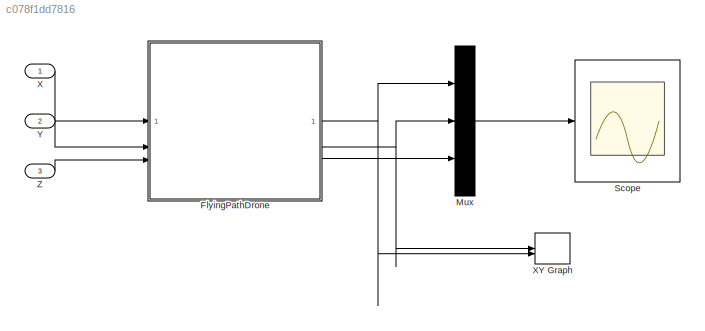
MODEL slx_c078f1dd7816
KIND model
CONFIG AbsTol = auto
CONFIG EnableMultiTasking = off
CONFIG FixedStep = auto
CONFIG MaxStep = auto
CONFIG MinStep = auto
CONFIG RelTol = 1e-3
CONFIG SampleTimeConstraint = Unconstrained
CONFIG SolverName = VariableStepAuto
CONFIG StartTime = 0.0
CONFIG StopTime = 25
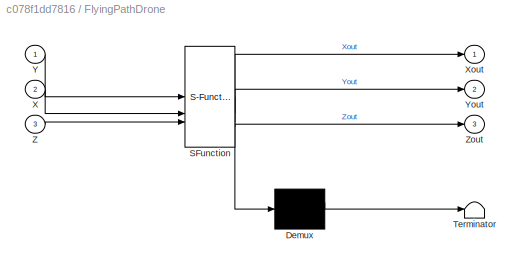
BLOCK [SubSystem] FlyingPathDrone 
  ErrorFcn = Stateflow.Translate.translate
  PermitHierarchicalResolution = ExplicitOnly
  PortSchema = {"entries":[{"content":{"sides":[{"content":{"connectorIds":["In2","In1","In3"]},"type":"ConnectorPlacement.EquallySpacedRectSide","uuid":"3a0f714e-808a-4da5-be67-da2f18581dd0"},{"content":{"connectorIds":["Out1","Out2","Out3"],"side":"RIGHT"},"type":"ConnectorPlacement.EquallySpacedRectSide","uuid":"07aeba56-ef63-4d9e-8974-53c928c3ca5a"},{"content":{"side":"TOP"},"type":"ConnectorPlacement.Equall...<+248ch>
  SFBlockType = Chart
  TreatAsAtomicUnit = on
BLOCK [Demux] FlyingPathDrone / Demux 
  Outputs = 1
BLOCK [S-Function] FlyingPathDrone / SFunction 
  EnableBusSupport = on
  FunctionName = sf_sfun
  PortCounts = [3 4]
  SFcnIsStateOwnerBlock = off
  SFunctionDeploymentMode = off
  Tag = Stateflow S-Function 3
BLOCK [Terminator] FlyingPathDrone / Terminator 
BLOCK [Inport] FlyingPathDrone /X
  Port = 2
BLOCK [Outport] FlyingPathDrone /Xout
BLOCK [Inport] FlyingPathDrone /Y
BLOCK [Outport] FlyingPathDrone /Yout
  Port = 2
BLOCK [Inport] FlyingPathDrone /Z
  Port = 3
BLOCK [Outport] FlyingPathDrone /Zout
  Port = 3
BLOCK [Mux] Mux
  DisplayOption = bar
  Inputs = 3
BLOCK [Scope] Scope
  Floating = off
  NumInputPorts = 1
  ScopeSpecificationString = Simulink.scopes.TimeScopeBlockCfg('CurrentConfiguration', extmgr.ConfigurationSet(extmgr.Configuration('Core','General UI',true),extmgr.Configuration('Core','Source UI',true),extmgr.Configuration('Sources','WiredSimulink',true),extmgr.Configuration('Visuals','Time Domain',true,'SerializedDisplays',{struct('MinYLimReal','-2.25','MaxYLimReal','20.25','YLabelReal','','MinYLimMag','0.00000','MaxYLimMa...<+1449ch>
BLOCK [Inport] X
BLOCK [Record] XY Graph
  CompatibilityTag = XY
  FileSettingsInternal = {"entries":[{"content":{"excelSettings":{"content":{},"type":"Streamout.ExcelSettings"}},"type":"Streamout.FileSettingStorage","uuid":""}],"packageUris":["http:\/\/schema.mathworks.com\/mf0\/streamout_blocks\/R2020a"],"version":"1.0"}
  Layout = [1 1]
  SignalsInternal = {"entries":[{"content":{"signals":[{"content":{"blockPath":[],"dimensions":[1],"domain":"","lineColor":"#a2142f","plots":[ 1 ],"port":1,"signalID":1,"signalName":"FlyingPathDrone :2"},"type":"RecordBlkView.Signal","uuid":""},{"content":{"blockPath":[],"dimensions":[1],"domain":"","lineColor":"#139fff","plots":[ 1 ],"port":2,"signalID":2,"signalName":"FlyingPathDrone :1"},"type":"RecordBlkView.Sign...<+160ch>
  VisualizationBindings = {"xyplotplugin":{"info":[{"series":[{"bindingParametersList":[{"parameter":"X-Axis","signalID":2,"signalName":"FlyingPathDrone :1"},{"parameter":"Y-Axis","signalID":1,"signalName":"FlyingPathDrone :2"}],"seriesID":0}],"subplotID":1}]}}
BLOCK [Inport] Y
  Port = 2
BLOCK [Inport] Z
  Port = 3
NET FlyingPathDrone :1 -> Mux:1, XY Graph:2
NET FlyingPathDrone :2 -> Mux:2, XY Graph:1
LINE FlyingPathDrone :3 -> Mux:3
LINE Mux:1 -> Scope:1
LINE X:1 -> FlyingPathDrone :2
LINE Y:1 -> FlyingPathDrone :1
LINE Z:1 -> FlyingPathDrone :3
note: NET lines group one-source signal fan-out (src -> all destinations, sorted); 1:1 wires keep LINE
CHART FlyingPathDrone  states=3 transitions=1
  STATE_LABEL 'FlightControl'
  STATE_LABEL 'TakeOff\nentry:\nXout = 0;\nYout = 0;\nZout = 0;\nduring:\nZout = Zout - 1'
  STATE_LABEL 'Landing\nentry:\nXout = Xout;\nYout = Yout;\nZout = Zout;\nduring:\nZout = Zout + 1'
  STATE_LABEL 'TakeOff\nentry:\nXout = 0;\nYout = 0;\nZout = 0;\nduring:\nZout = Zout - 1'
  STATE_LABEL 'Landing\nentry:\nXout = Xout;\nYout = Yout;\nZout = Zout;\nduring:\nZout = Zout + 1'
CHART  states=0 transitions=0
